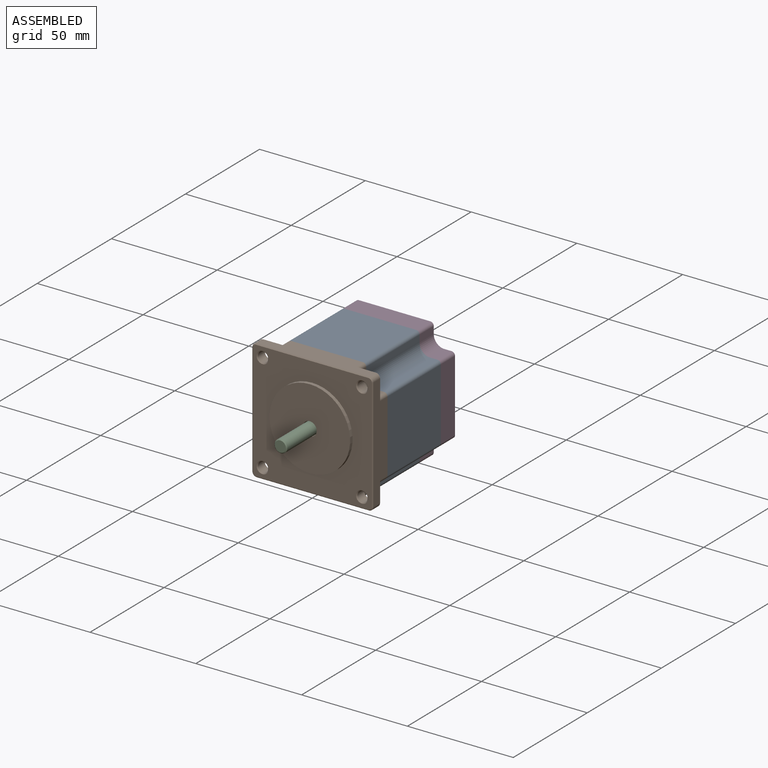
[diagram: assembled view]
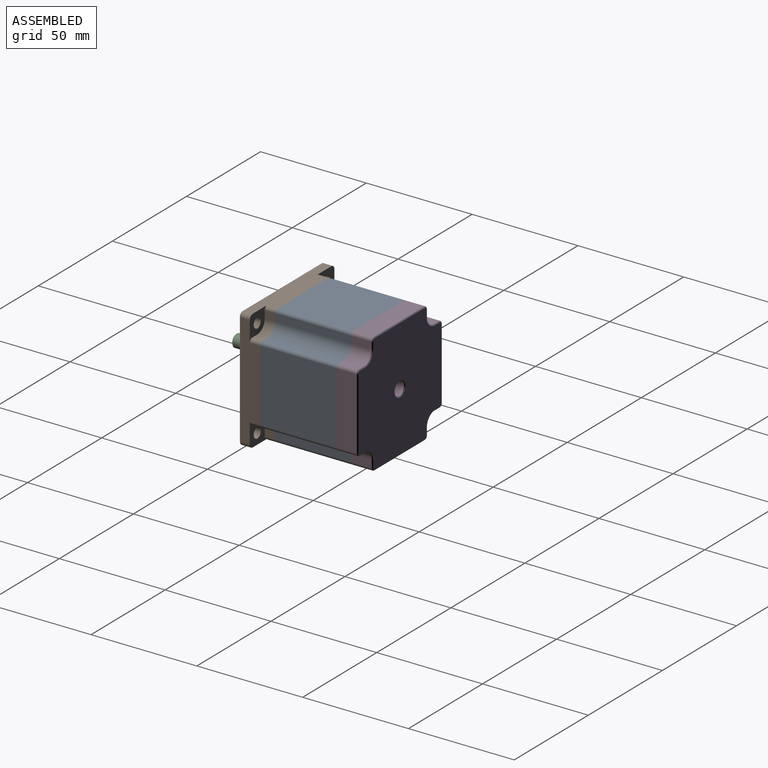
[diagram: assembled view, second angle]
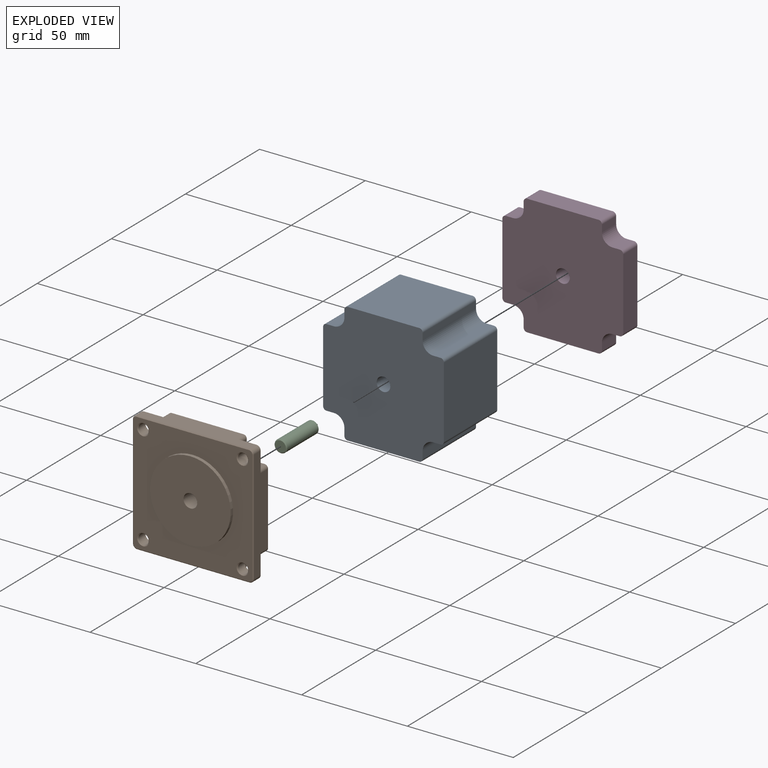
[diagram: exploded view]
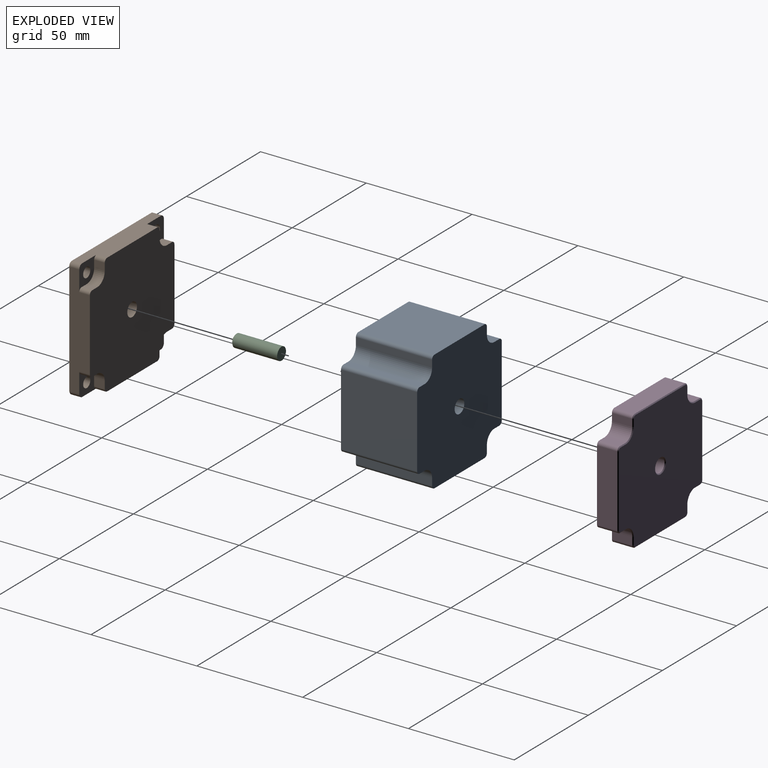
[diagram: exploded view, second angle]
ASSEMBLY  parts=4 mates=8
PART A: 27 faces, bbox 57.1x36x57.1 mm
  f0: plane 57.1x57.1mm, normal (0,-1,0), area 2840.3mm2, adj f1,f2,f3,f4,f5,f6,f7,f8
  f1: plane 36x33.8mm, normal (1,0,0), area 1216.8mm2, adj f0,f2,f25,f26
  f2: cylinder r=1.6mm len=36mm, axis (0,1,0), area 90.5mm2, adj f0,f1,f3,f26
  f3: plane 36x3.45mm, normal (0,0,1), area 124.2mm2, adj f0,f2,f4,f26
  f4: cylinder r=5mm len=36mm, axis (0,1,0), area 282.7mm2, adj f0,f3,f5,f26
  f5: plane 36x3.45mm, normal (1,0,0), area 124.2mm2, adj f0,f4,f6,f26
  f6: cylinder r=1.6mm len=36mm, axis (0,1,0), area 90.5mm2, adj f0,f5,f7,f26
  f7: plane 36x33.8mm, normal (0,0,1), area 1216.8mm2, adj f0,f6,f8,f26
  f8: cylinder r=1.6mm len=36mm, axis (0,1,0), area 90.5mm2, adj f0,f7,f9,f26
  f9: plane 36x3.45mm, normal (-1,0,0), area 124.2mm2, adj f0,f8,f10,f26
  f10: cylinder r=5mm len=36mm, axis (0,1,0), area 282.7mm2, adj f0,f9,f11,f26
  f11: plane 36x3.45mm, normal (0,0,1), area 124.2mm2, adj f0,f10,f12,f26
  f12: cylinder r=1.6mm len=36mm, axis (0,1,0), area 90.5mm2, adj f0,f11,f13,f26
  f13: plane 36x33.8mm, normal (-1,0,0), area 1216.8mm2, adj f0,f12,f14,f26
  f14: cylinder r=1.6mm len=36mm, axis (0,1,0), area 90.5mm2, adj f0,f13,f15,f26
  f15: plane 36x3.45mm, normal (0,0,-1), area 124.2mm2, adj f0,f14,f16,f26
  f16: cylinder r=5mm len=36mm, axis (0,1,0), area 282.7mm2, adj f0,f15,f17,f26
  f17: plane 36x3.45mm, normal (-1,0,0), area 124.2mm2, adj f0,f16,f18,f26
  f18: cylinder r=1.6mm len=36mm, axis (0,1,0), area 90.5mm2, adj f0,f17,f19,f26
  f19: plane 36x33.8mm, normal (0,0,-1), area 1216.8mm2, adj f0,f18,f20,f26
  f20: cylinder r=1.6mm len=36mm, axis (0,1,0), area 90.5mm2, adj f0,f19,f21,f26
  f21: plane 36x3.45mm, normal (1,0,0), area 124.2mm2, adj f0,f20,f22,f26
  f22: cylinder r=5mm len=36mm, axis (0,1,0), area 282.7mm2, adj f0,f21,f23,f26
  f23: plane 36x3.45mm, normal (0,0,-1), area 124.2mm2, adj f0,f22,f25,f26
  f24: cylinder r=3.25mm len=36mm, axis (0,1,0), area 735.1mm2, adj f0,f26
  f25: cylinder r=1.6mm len=36mm, axis (0,1,0), area 90.5mm2, adj f0,f1,f23,f26
  f26: plane 57.1x57.1mm, normal (0,1,0), area 2840.3mm2, adj f1,f2,f3,f4,f5,f6,f7,f8
PART B: 53 faces, bbox 57.1x11.7x57.1 mm
  f0: plane 11.65x11.65mm, normal (0,1,0), area 77.8mm2, adj f4,f5,f6,f13,f20,f21,f22,f23
  f1: plane 11.65x11.65mm, normal (0,1,0), area 77.8mm2, adj f6,f7,f8,f12,f25,f26,f27,f28
  f2: plane 11.65x11.65mm, normal (0,1,0), area 77.8mm2, adj f8,f9,f10,f11,f30,f31,f32,f33
  f3: plane 11.65x11.65mm, normal (0,1,0), area 77.8mm2, adj f4,f10,f14,f15,f18,f19,f35,f36
  f4: plane 53.1x9.6mm, normal (0,0,1), area 413.3mm2, adj f0,f3,f5,f15,f19,f20,f38,f41
  f5: cylinder r=2mm len=4.6mm, axis (0,-1,0), area 14.5mm2, adj f0,f4,f6,f43
  f6: plane 53.1x9.6mm, normal (-1,0,0), area 413.3mm2, adj f0,f1,f5,f7,f24,f25,f38,f45
  f7: cylinder r=2mm len=4.6mm, axis (0,-1,0), area 14.5mm2, adj f1,f6,f8,f47
  f8: plane 53.1x9.6mm, normal (0,0,-1), area 413.3mm2, adj f1,f2,f7,f9,f29,f30,f38,f48
  f9: cylinder r=2mm len=4.6mm, axis (0,-1,0), area 14.5mm2, adj f2,f8,f10,f46
  f10: plane 53.1x9.6mm, normal (1,0,0), area 413.3mm2, adj f2,f3,f9,f15,f34,f35,f38,f44
  f11: cylinder r=2.4mm len=4.8mm, axis (0,-1,0), area 69.4mm2, adj f2,f51
  f12: cylinder r=2.4mm len=4.8mm, axis (0,-1,0), area 69.4mm2, adj f1,f50
  f13: cylinder r=2.4mm len=4.8mm, axis (0,-1,0), area 69.4mm2, adj f0,f49
  f14: cylinder r=2.4mm len=4.8mm, axis (0,-1,0), area 69.4mm2, adj f3,f52
  f15: cylinder r=2mm len=4.6mm, axis (0,-1,0), area 14.5mm2, adj f3,f4,f10,f42
  f16: cylinder r=3.25mm len=11.65mm, axis (0,-1,0), area 237.9mm2, adj f38,f40
  f17: plane 56.3x56.3mm, normal (0,-1,0), area 1928.9mm2, adj f39,f41,f42,f43,f44,f45,f46,f47
  f18: plane 5x3.45mm, normal (1,0,0), area 17.3mm2, adj f3,f19,f37,f38
  f19: cylinder r=1.6mm len=5mm, axis (0,-1,0), area 12.6mm2, adj f3,f4,f18,f38
  f20: cylinder r=1.6mm len=5mm, axis (0,-1,0), area 12.6mm2, adj f0,f4,f21,f38
  f21: plane 5x3.45mm, normal (-1,0,0), area 17.3mm2, adj f0,f20,f22,f38
  f22: cylinder r=5mm len=5mm, axis (0,-1,0), area 39.3mm2, adj f0,f21,f23,f38
  f23: plane 5x3.45mm, normal (0,0,1), area 17.3mm2, adj f0,f22,f24,f38
  f24: cylinder r=1.6mm len=5mm, axis (0,-1,0), area 12.6mm2, adj f0,f6,f23,f38
  f25: cylinder r=1.6mm len=5mm, axis (0,-1,0), area 12.6mm2, adj f1,f6,f26,f38
  f26: plane 5x3.45mm, normal (0,0,-1), area 17.3mm2, adj f1,f25,f27,f38
  f27: cylinder r=5mm len=5mm, axis (0,-1,0), area 39.3mm2, adj f1,f26,f28,f38
  f28: plane 5x3.45mm, normal (-1,0,0), area 17.3mm2, adj f1,f27,f29,f38
  f29: cylinder r=1.6mm len=5mm, axis (0,-1,0), area 12.6mm2, adj f1,f8,f28,f38
  f30: cylinder r=1.6mm len=5mm, axis (0,-1,0), area 12.6mm2, adj f2,f8,f31,f38
  f31: plane 5x3.45mm, normal (1,0,0), area 17.3mm2, adj f2,f30,f32,f38
  f32: cylinder r=5mm len=5mm, axis (0,-1,0), area 39.3mm2, adj f2,f31,f33,f38
  f33: plane 5x3.45mm, normal (0,0,-1), area 17.3mm2, adj f2,f32,f34,f38
  f34: cylinder r=1.6mm len=5mm, axis (0,-1,0), area 12.6mm2, adj f2,f10,f33,f38
  f35: cylinder r=1.6mm len=5mm, axis (0,-1,0), area 12.6mm2, adj f3,f10,f36,f38
  f36: plane 5x3.45mm, normal (0,0,1), area 17.3mm2, adj f3,f35,f37,f38
  f37: cylinder r=5mm len=5mm, axis (0,-1,0), area 39.3mm2, adj f3,f18,f36,f38
  f38: plane 57.1x57.1mm, normal (0,1,0), area 2840.3mm2, adj f4,f6,f8,f10,f16,f18,f19,f20
  f39: cylinder r=19.05mm len=38.1mm, axis (0,1,0), area 197.5mm2, adj f17,f40
  f40: plane 38.1x38.1mm, normal (0,-1,0), area 1106.9mm2, adj f16,f39
  f41: plane 53.1x0.4mm, normal (0,-0.71,0.71), area 30mm2, adj f4,f17,f42,f43
  f42: cone r=1.6mm half-angle=45deg, axis (0,1,0), area 1.6mm2, adj f15,f17,f41,f44
  f43: cone r=1.6mm half-angle=45deg, axis (0,1,0), area 1.6mm2, adj f5,f17,f41,f45
  f44: plane 53.1x0.4mm, normal (0.71,-0.71,0), area 30mm2, adj f10,f17,f42,f46
  f45: plane 53.1x0.4mm, normal (-0.71,-0.71,0), area 30mm2, adj f6,f17,f43,f47
  f46: cone r=1.6mm half-angle=45deg, axis (0,1,0), area 1.6mm2, adj f9,f17,f44,f48
  f47: cone r=1.6mm half-angle=45deg, axis (0,1,0), area 1.6mm2, adj f7,f17,f45,f48
  f48: plane 53.1x0.4mm, normal (0,-0.71,-0.71), area 30mm2, adj f8,f17,f46,f47
  f49: cone r=2.4mm half-angle=45deg, axis (0,-1,0), area 9.2mm2, adj f13,f17
  f50: cone r=2.4mm half-angle=45deg, axis (0,-1,0), area 9.2mm2, adj f12,f17
  f51: cone r=2.4mm half-angle=45deg, axis (0,-1,0), area 9.2mm2, adj f11,f17
  f52: cone r=2.4mm half-angle=45deg, axis (0,-1,0), area 9.2mm2, adj f14,f17
PART C: 4 faces, bbox 6x21.5x6 mm
  f0: cylinder r=3mm len=21.1mm, axis (0,1,0), area 397.7mm2, adj f2,f3
  f1: plane 5.2x5.2mm, normal (0,-1,0), area 21.2mm2, adj f3
  f2: plane 6x6mm, normal (0,1,0), area 28.3mm2, adj f0
  f3: cone r=2.6mm half-angle=45deg, axis (0,1,0), area 10mm2, adj f0,f1
PART D: 52 faces, bbox 57.1x10x57.1 mm
  f0: plane 33.8x9.6mm, normal (1,0,0), area 324.5mm2, adj f1,f24,f25,f37
  f1: cylinder r=1.6mm len=9.6mm, axis (0,1,0), area 24.1mm2, adj f0,f2,f25,f35
  f2: plane 9.6x3.45mm, normal (0,0,1), area 33.1mm2, adj f1,f3,f25,f33
  f3: cylinder r=5mm len=9.6mm, axis (0,1,0), area 75.4mm2, adj f2,f4,f25,f31
  f4: plane 9.6x3.45mm, normal (1,0,0), area 33.1mm2, adj f3,f5,f25,f29
  f5: cylinder r=1.6mm len=9.6mm, axis (0,1,0), area 24.1mm2, adj f4,f6,f25,f27
  f6: plane 33.8x9.6mm, normal (0,0,1), area 324.5mm2, adj f5,f7,f25,f28
  f7: cylinder r=1.6mm len=9.6mm, axis (0,1,0), area 24.1mm2, adj f6,f8,f25,f30
  f8: plane 9.6x3.45mm, normal (-1,0,0), area 33.1mm2, adj f7,f9,f25,f32
  f9: cylinder r=5mm len=9.6mm, axis (0,1,0), area 75.4mm2, adj f8,f10,f25,f34
  f10: plane 9.6x3.45mm, normal (0,0,1), area 33.1mm2, adj f9,f11,f25,f36
  f11: cylinder r=1.6mm len=9.6mm, axis (0,1,0), area 24.1mm2, adj f10,f12,f25,f38
  f12: plane 33.8x9.6mm, normal (-1,0,0), area 324.5mm2, adj f11,f13,f25,f40
  f13: cylinder r=1.6mm len=9.6mm, axis (0,1,0), area 24.1mm2, adj f12,f14,f25,f42
  f14: plane 9.6x3.45mm, normal (0,0,-1), area 33.1mm2, adj f13,f15,f25,f44
  f15: cylinder r=5mm len=9.6mm, axis (0,1,0), area 75.4mm2, adj f14,f16,f25,f46
  f16: plane 9.6x3.45mm, normal (-1,0,0), area 33.1mm2, adj f15,f17,f25,f48
  f17: cylinder r=1.6mm len=9.6mm, axis (0,1,0), area 24.1mm2, adj f16,f18,f25,f50
  f18: plane 33.8x9.6mm, normal (0,0,-1), area 324.5mm2, adj f17,f19,f25,f49
  f19: cylinder r=1.6mm len=9.6mm, axis (0,1,0), area 24.1mm2, adj f18,f20,f25,f47
  f20: plane 9.6x3.45mm, normal (1,0,0), area 33.1mm2, adj f19,f21,f25,f45
  f21: cylinder r=5mm len=9.6mm, axis (0,1,0), area 75.4mm2, adj f20,f22,f25,f43
  f22: plane 9.6x3.45mm, normal (0,0,-1), area 33.1mm2, adj f21,f24,f25,f41
  f23: cylinder r=3.25mm len=9.6mm, axis (0,1,0), area 196mm2, adj f25,f51
  f24: cylinder r=1.6mm len=9.6mm, axis (0,1,0), area 24.1mm2, adj f0,f22,f25,f39
  f25: plane 57.1x57.1mm, normal (0,-1,0), area 2840.3mm2, adj f0,f1,f2,f3,f4,f5,f6,f7
  f26: plane 56.3x56.3mm, normal (0,1,0), area 2746.4mm2, adj f27,f28,f29,f30,f31,f32,f33,f34
  f27: cone r=1.6mm half-angle=45deg, axis (0,-1,0), area 1.2mm2, adj f5,f26,f28,f29
  f28: plane 33.8x0.4mm, normal (0,0.71,0.71), area 19.1mm2, adj f6,f26,f27,f30
  f29: plane 3.45x0.4mm, normal (0.71,0.71,0), area 2mm2, adj f4,f26,f27,f31
  f30: cone r=1.6mm half-angle=45deg, axis (0,-1,0), area 1.2mm2, adj f7,f26,f28,f32
  f31: cone r=5mm half-angle=45deg, axis (0,1,0), area 4.6mm2, adj f3,f26,f29,f33
  f32: plane 3.45x0.4mm, normal (-0.71,0.71,0), area 2mm2, adj f8,f26,f30,f34
  f33: plane 3.45x0.4mm, normal (0,0.71,0.71), area 2mm2, adj f2,f26,f31,f35
  f34: cone r=5mm half-angle=45deg, axis (0,1,0), area 4.6mm2, adj f9,f26,f32,f36
  f35: cone r=1.6mm half-angle=45deg, axis (0,-1,0), area 1.2mm2, adj f1,f26,f33,f37
  f36: plane 3.45x0.4mm, normal (0,0.71,0.71), area 2mm2, adj f10,f26,f34,f38
  f37: plane 33.8x0.4mm, normal (0.71,0.71,0), area 19.1mm2, adj f0,f26,f35,f39
  f38: cone r=1.6mm half-angle=45deg, axis (0,-1,0), area 1.2mm2, adj f11,f26,f36,f40
  f39: cone r=1.6mm half-angle=45deg, axis (0,-1,0), area 1.2mm2, adj f24,f26,f37,f41
  f40: plane 33.8x0.4mm, normal (-0.71,0.71,0), area 19.1mm2, adj f12,f26,f38,f42
  f41: plane 3.45x0.4mm, normal (0,0.71,-0.71), area 2mm2, adj f22,f26,f39,f43
  f42: cone r=1.6mm half-angle=45deg, axis (0,-1,0), area 1.2mm2, adj f13,f26,f40,f44
  f43: cone r=5mm half-angle=45deg, axis (0,1,0), area 4.6mm2, adj f21,f26,f41,f45
  f44: plane 3.45x0.4mm, normal (0,0.71,-0.71), area 2mm2, adj f14,f26,f42,f46
  f45: plane 3.45x0.4mm, normal (0.71,0.71,0), area 2mm2, adj f20,f26,f43,f47
  f46: cone r=5mm half-angle=45deg, axis (0,1,0), area 4.6mm2, adj f15,f26,f44,f48
  f47: cone r=1.6mm half-angle=45deg, axis (0,-1,0), area 1.2mm2, adj f19,f26,f45,f49
  f48: plane 3.45x0.4mm, normal (-0.71,0.71,0), area 2mm2, adj f16,f26,f46,f50
  f49: plane 33.8x0.4mm, normal (0,0.71,-0.71), area 19.1mm2, adj f18,f26,f47,f50
  f50: cone r=1.6mm half-angle=45deg, axis (0,-1,0), area 1.2mm2, adj f17,f26,f48,f49
  f51: cone r=3.65mm half-angle=45deg, axis (0,1,0), area 12.3mm2, adj f23,f26
PLACE A at identity
PLACE B at identity fixed
PLACE C rot(axis=(0,-1,0),31.4deg) t=(0,0,0)mm
PLACE D at identity
MATE cylindrical A.f4 <-> B.f14  axis (0,1,0) through (23.5,28,23.5)mm
MATE planar D.f25 <-> A.f24  axis (0,-1,0) through (0,46,28.55)mm
MATE planar A.f24 <-> B.f39  axis (0,-1,0) through (0,10,0)mm
MATE cylindrical D.f3 <-> A.f4  axis (0,1,0) through (23.5,50.8,23.5)mm
MATE cylindrical C.f0 <-> B.f16  axis (0,1,0) through (0,-10.55,0)mm
MATE planar C.f0 <-> B.f16  axis (0,1,0) through (0,0,0)mm
MATE cylindrical A.f16 <-> B.f12  axis (0,1,0) through (-23.5,46,-23.5)mm
MATE cylindrical A.f16 <-> D.f15  axis (0,1,0) through (-23.5,28,-23.5)mm
